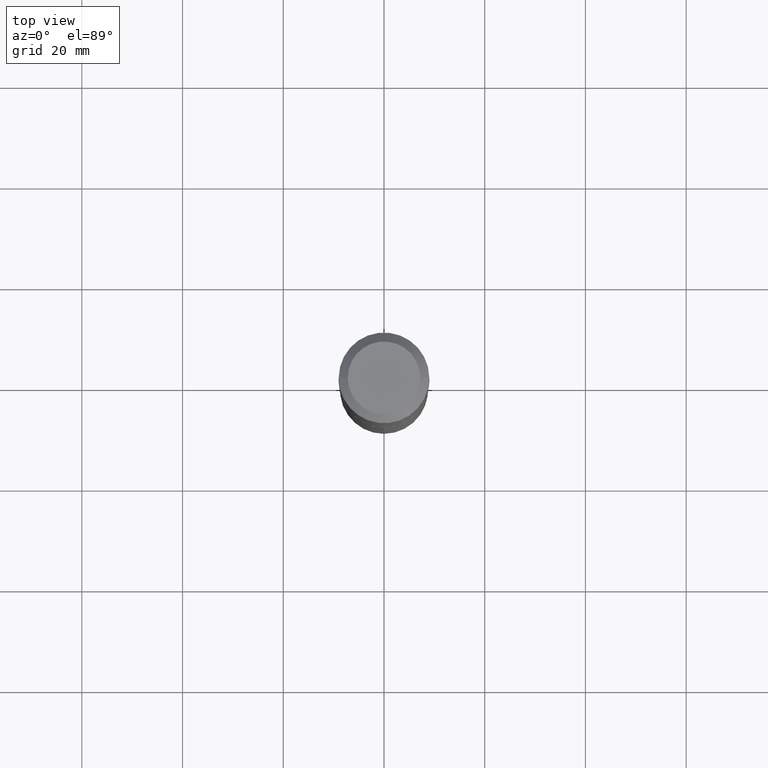
[diagram: clean part render]
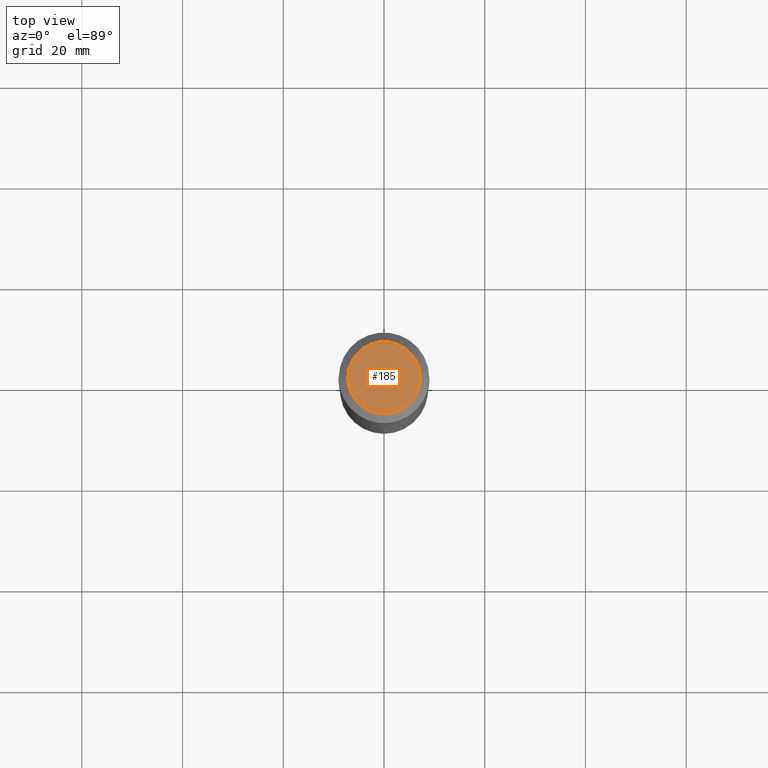
[diagram: same view with one face highlighted and labeled with its STEP entity id]
A machine part, top view. The second image highlights one B-rep face of the part: STEP entity #185.
In plain terms, the highlighted planar face has unit normal (0, -0, -1).
Its self-contained STEP definition (entity closure, byte-faithful):
#7 = FACE_OUTER_BOUND ( 'NONE', #347, .T. ) ;
#23 = DIRECTION ( 'NONE',  ( -2.445468806185136597E-29, 3.491481338843145583E-15, 1.000000000000000000 ) ) ;
#28 = DIRECTION ( 'NONE',  ( 1.000000000000000000, -6.982962677686266711E-15, 4.876249319814053138E-29 ) ) ;
#69 = VERTEX_POINT ( 'NONE', #458 ) ;
#73 = DIRECTION ( 'NONE',  ( 2.438088387897960049E-29, -3.491481338843145188E-15, -1.000000000000000000 ) ) ;
#115 = CARTESIAN_POINT ( 'NONE',  ( -4.719860820353095981E-47, 6.738710358733626979E-33, 1.930043355456227555E-18 ) ) ;
#164 = CARTESIAN_POINT ( 'NONE',  ( -0.2834800000000000098, 2.103250901112408108E-15, 3.860086710898179346E-18 ) ) ;
#171 = AXIS2_PLACEMENT_3D ( 'NONE', #393, #350, #205 ) ;
#185 = ADVANCED_FACE ( 'NONE', ( #7 ), #459, .F. ) ;
#205 = DIRECTION ( 'NONE',  ( 1.000000000000000000, -6.982962677686266711E-15, 4.876249319814053138E-29 ) ) ;
#326 = AXIS2_PLACEMENT_3D ( 'NONE', #365, #23, #28 ) ;
#347 = EDGE_LOOP ( 'NONE', ( #470, #476 ) ) ;
#350 = DIRECTION ( 'NONE',  ( -2.445468806185136597E-29, 3.491481338843145583E-15, 1.000000000000000000 ) ) ;
#361 = VERTEX_POINT ( 'NONE', #164 ) ;
#365 = CARTESIAN_POINT ( 'NONE',  ( -9.439721640706191963E-47, 1.347742071746725396E-32, 3.860086710912455110E-18 ) ) ;
#372 = EDGE_CURVE ( 'NONE', #361, #69, #407, .T. ) ;
#393 = CARTESIAN_POINT ( 'NONE',  ( -9.439721640706191963E-47, 1.347742071746725396E-32, 3.860086710912455110E-18 ) ) ;
#402 = CIRCLE ( 'NONE', #326, 0.2834800000000000098 ) ;
#407 = CIRCLE ( 'NONE', #171, 0.2834800000000000098 ) ;
#411 = DIRECTION ( 'NONE',  ( -1.000000000000000000, 6.982962677686265922E-15, -4.876176775795935793E-29 ) ) ;
#458 = CARTESIAN_POINT ( 'NONE',  ( 0.2834800000000000098, -2.311636360201216027E-15, 3.860086710927458874E-18 ) ) ;
#459 = PLANE ( 'NONE',  #480 ) ;
#470 = ORIENTED_EDGE ( 'NONE', *, *, #372, .T. ) ;
#476 = ORIENTED_EDGE ( 'NONE', *, *, #479, .T. ) ;
#479 = EDGE_CURVE ( 'NONE', #69, #361, #402, .T. ) ;
#480 = AXIS2_PLACEMENT_3D ( 'NONE', #115, #73, #411 ) ;